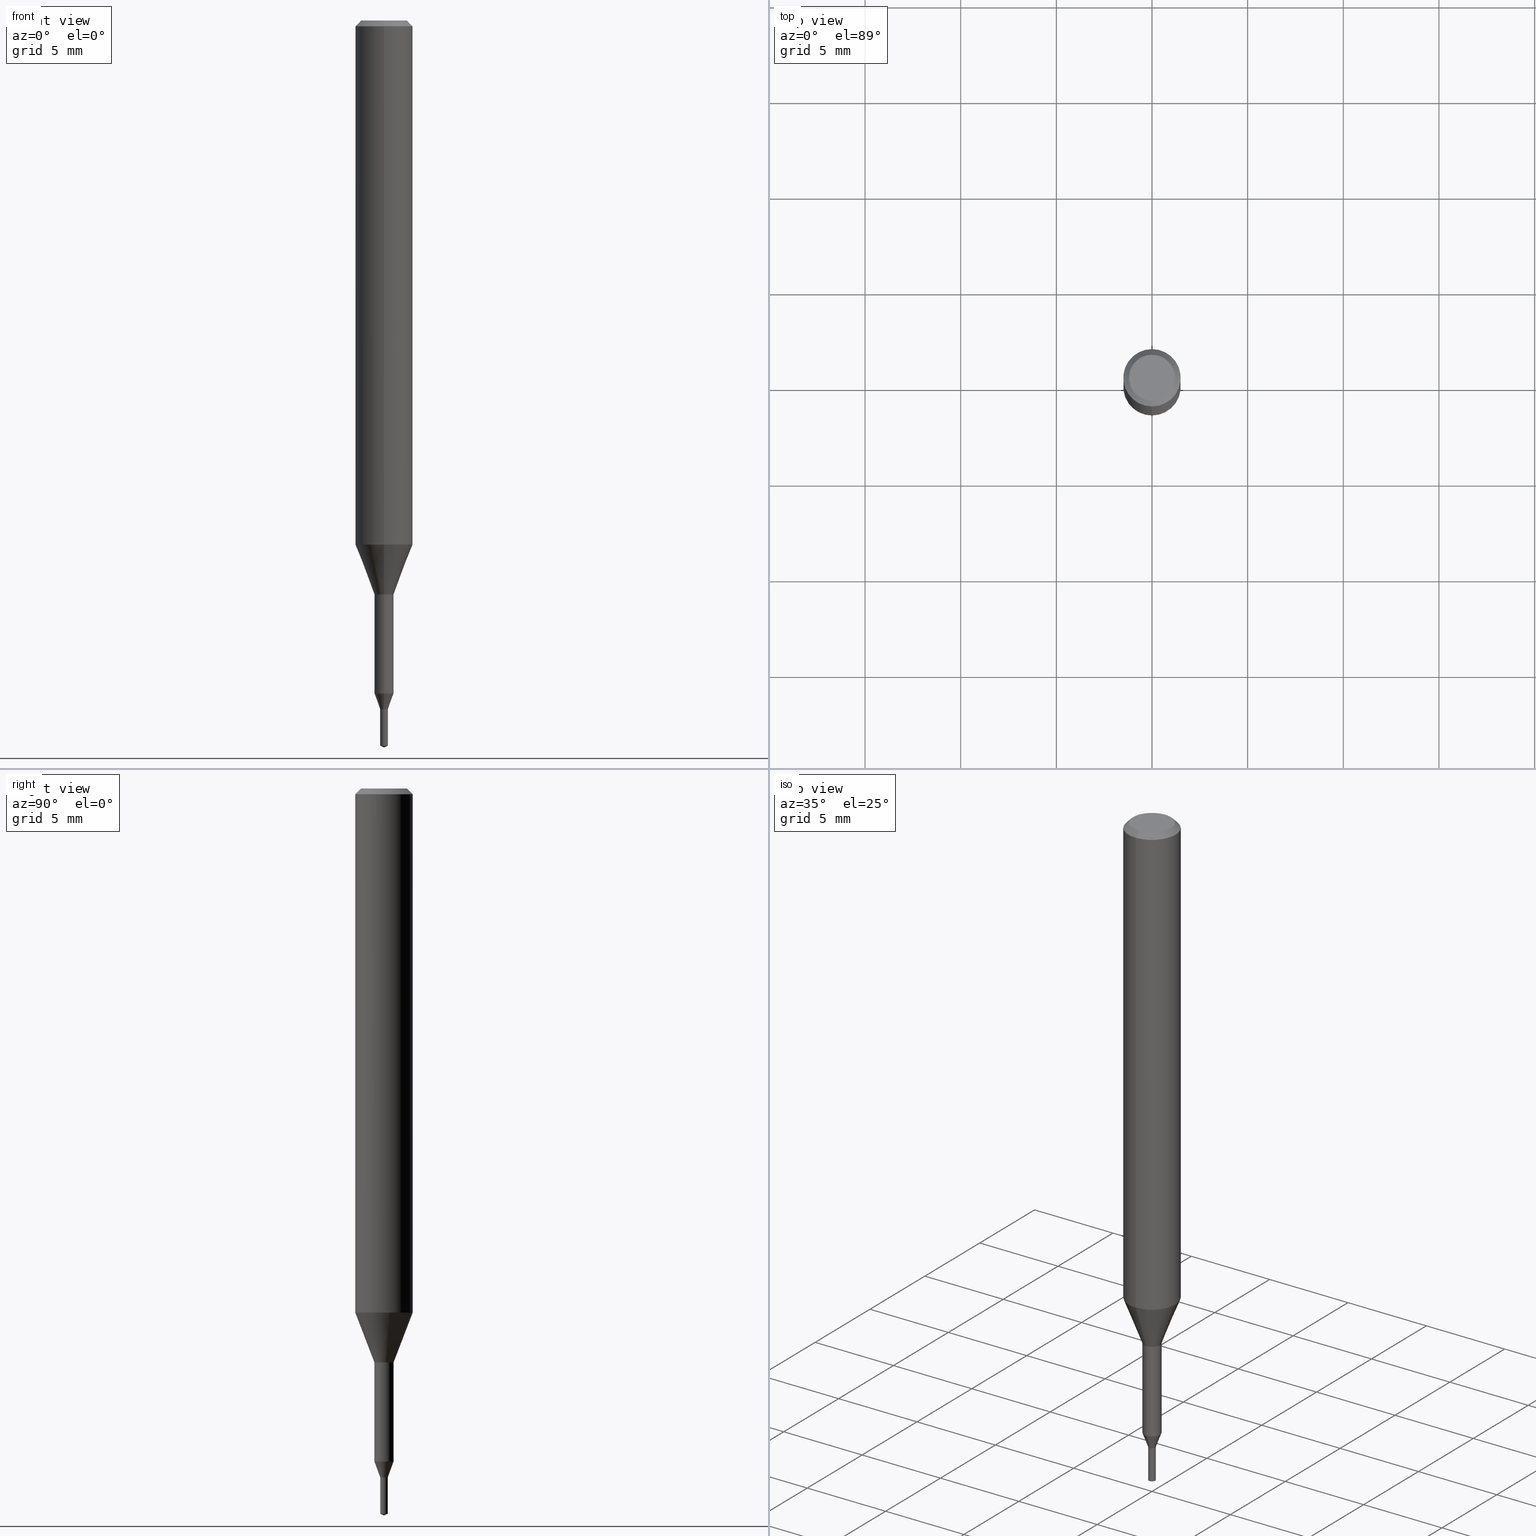
[diagram: canonical four-view strip — front | top / right | iso, engineering-drawing reading convention]
A machine part, canonical four-view strip (front | top / right | iso — engineering-drawing reading convention). The complete STEP part file that produces these views, byte-faithful:
ISO-10303-21;
HEADER;
FILE_DESCRIPTION(('no description'),'unknown implementation level');
FILE_NAME('UTDSX2040-020-Huellk.stp','  ',('CIMSOURCE GmbH'),('CADClick - KiM GmbH - www.kimweb.de'),'unknown preprocess','ACIS','unknown authorization');
FILE_SCHEMA(('automotive_design'));
ENDSEC;
DATA;
#1=MECHANICAL_DESIGN_GEOMETRIC_PRESENTATION_REPRESENTATION(' ',(#14,#15,#16,#17,#18,#19,#20,#21,#22,#23,#24,#25,#26,#27,#28,#29,#30,#31,#32,#33,#34,#35,#36,#37,#38,#39,#40,#41,#42,#43,#44,#45,#46,#47,#48,#49,#50,#51,#52,#53,#54,#55,#56,#57,#58,#59,#60,#61,#62,#63,#64,#65,#66,#67,#68,#69,#70,#71,#72,#73,#74,#75,#76,#77,#78,#79,#80,#81,#82,#83,#84,#85,#86,#87,#88,#89,#90,#91,#92),#10);
#2=PRODUCT_DEFINITION_CONTEXT('',#93,'design');
#3=APPLICATION_PROTOCOL_DEFINITION('INTERNATIONAL STANDARD','automotive_design',1994,#93);
#4=PRODUCT_CATEGORY_RELATIONSHIP('NONE','NONE',#94,#95);
#5=SHAPE_DEFINITION_REPRESENTATION(#96,#97);
#6=PRODUCT_DEFINITION_CONTEXT('',#98,'design');
#7=APPLICATION_PROTOCOL_DEFINITION('INTERNATIONAL STANDARD','automotive_design',1994,#98);
#8=PRODUCT_CATEGORY_RELATIONSHIP('NONE','NONE',#99,#100);
#9=SHAPE_DEFINITION_REPRESENTATION(#101,#102);
#10= (GEOMETRIC_REPRESENTATION_CONTEXT(3)GLOBAL_UNCERTAINTY_ASSIGNED_CONTEXT((#105))GLOBAL_UNIT_ASSIGNED_CONTEXT((#107,#108,#109))REPRESENTATION_CONTEXT('NONE','WORKSPACE'));
#14=STYLED_ITEM('',(#111),#112);
#15=STYLED_ITEM('',(#113),#114);
#16=STYLED_ITEM('',(#115),#116);
#17=STYLED_ITEM('',(#117),#118);
#18=STYLED_ITEM('',(#119),#120);
#19=STYLED_ITEM('',(#121),#122);
#20=STYLED_ITEM('',(#123),#124);
#21=STYLED_ITEM('',(#125),#126);
#22=STYLED_ITEM('',(#127),#128);
#23=STYLED_ITEM('',(#129),#130);
#24=STYLED_ITEM('',(#131),#132);
#25=STYLED_ITEM('',(#133),#134);
#26=STYLED_ITEM('',(#135),#136);
#27=STYLED_ITEM('',(#137),#138);
#28=STYLED_ITEM('',(#139),#140);
#29=STYLED_ITEM('',(#141),#142);
#30=STYLED_ITEM('',(#143),#144);
#31=STYLED_ITEM('',(#145),#146);
#32=STYLED_ITEM('',(#147),#148);
#33=STYLED_ITEM('',(#149),#150);
#34=STYLED_ITEM('',(#151),#152);
#35=STYLED_ITEM('',(#153),#154);
#36=STYLED_ITEM('',(#155),#156);
#37=STYLED_ITEM('',(#157),#158);
#38=STYLED_ITEM('',(#159),#160);
#39=STYLED_ITEM('',(#161),#162);
#40=STYLED_ITEM('',(#163),#164);
#41=STYLED_ITEM('',(#165),#166);
#42=STYLED_ITEM('',(#167),#168);
#43=STYLED_ITEM('',(#169),#170);
#44=STYLED_ITEM('',(#171),#172);
#45=STYLED_ITEM('',(#173),#174);
#46=STYLED_ITEM('',(#175),#176);
#47=STYLED_ITEM('',(#177),#178);
#48=STYLED_ITEM('',(#179),#180);
#49=STYLED_ITEM('',(#181),#182);
#50=STYLED_ITEM('',(#183),#184);
#51=STYLED_ITEM('',(#185),#186);
#52=STYLED_ITEM('',(#187),#188);
#53=STYLED_ITEM('',(#189),#190);
#54=STYLED_ITEM('',(#191),#192);
#55=STYLED_ITEM('',(#193),#194);
#56=STYLED_ITEM('',(#195),#196);
#57=STYLED_ITEM('',(#197),#198);
#58=STYLED_ITEM('',(#199),#200);
#59=STYLED_ITEM('',(#201),#202);
#60=STYLED_ITEM('',(#203),#204);
#61=STYLED_ITEM('',(#205),#206);
#62=STYLED_ITEM('',(#207),#208);
#63=STYLED_ITEM('',(#209),#210);
#64=STYLED_ITEM('',(#211),#212);
#65=STYLED_ITEM('',(#213),#214);
#66=STYLED_ITEM('',(#215),#216);
#67=STYLED_ITEM('',(#217),#218);
#68=STYLED_ITEM('',(#219),#220);
#69=STYLED_ITEM('',(#221),#222);
#70=STYLED_ITEM('',(#223),#224);
#71=STYLED_ITEM('',(#225),#226);
#72=STYLED_ITEM('',(#227),#228);
#73=STYLED_ITEM('',(#229),#230);
#74=STYLED_ITEM('',(#231),#232);
#75=STYLED_ITEM('',(#233),#234);
#76=STYLED_ITEM('',(#235),#236);
#77=STYLED_ITEM('',(#237),#238);
#78=STYLED_ITEM('',(#239),#240);
#79=STYLED_ITEM('',(#241),#242);
#80=STYLED_ITEM('',(#243),#244);
#81=STYLED_ITEM('',(#245),#246);
#82=STYLED_ITEM('',(#247),#248);
#83=STYLED_ITEM('',(#249),#250);
#84=STYLED_ITEM('',(#251),#252);
#85=STYLED_ITEM('',(#253),#254);
#86=STYLED_ITEM('',(#255),#256);
#87=STYLED_ITEM('',(#257),#258);
#88=STYLED_ITEM('',(#259),#260);
#89=STYLED_ITEM('',(#261),#262);
#90=STYLED_ITEM('',(#263),#264);
#91=STYLED_ITEM('',(#265),#266);
#92=STYLED_ITEM('',(#267),#268);
#93=APPLICATION_CONTEXT(' ');
#94=PRODUCT_CATEGORY('part','NONE');
#95=PRODUCT_RELATED_PRODUCT_CATEGORY('detail',' ',(#269));
#96=PRODUCT_DEFINITION_SHAPE('NONE','NONE',#270);
#97=ADVANCED_BREP_SHAPE_REPRESENTATION('1',(#268,#271),#10);
#98=APPLICATION_CONTEXT(' ');
#99=PRODUCT_CATEGORY('part','NONE');
#100=PRODUCT_RELATED_PRODUCT_CATEGORY('detail',' ',(#272));
#101=PRODUCT_DEFINITION_SHAPE('NONE','NONE',#273);
#102=ADVANCED_BREP_SHAPE_REPRESENTATION('2',(#238,#274),#10);
#105=UNCERTAINTY_MEASURE_WITH_UNIT(LENGTH_MEASURE(1.0E-006),#107,'','');
#107= (CONVERSION_BASED_UNIT('MILLIMETRE',#277)LENGTH_UNIT()NAMED_UNIT(#280));
#108= (NAMED_UNIT(#282)PLANE_ANGLE_UNIT()SI_UNIT($,.RADIAN.));
#109= (NAMED_UNIT(#282)SOLID_ANGLE_UNIT()SI_UNIT($,.STERADIAN.));
#111=PRESENTATION_STYLE_ASSIGNMENT((#288));
#112=ADVANCED_FACE('',(#289),#290,.T.);
#113=PRESENTATION_STYLE_ASSIGNMENT((#291));
#114=EDGE_CURVE('',#138,#196,#292,.T.);
#115=PRESENTATION_STYLE_ASSIGNMENT((#293));
#116=VERTEX_POINT('',#294);
#117=PRESENTATION_STYLE_ASSIGNMENT((#295));
#118=ADVANCED_FACE('',(#296),#297,.T.);
#119=PRESENTATION_STYLE_ASSIGNMENT((#298));
#120=VERTEX_POINT('',#299);
#121=PRESENTATION_STYLE_ASSIGNMENT((#300));
#122=VERTEX_POINT('',#301);
#123=PRESENTATION_STYLE_ASSIGNMENT((#302));
#124=ADVANCED_FACE('',(#303),#304,.T.);
#125=PRESENTATION_STYLE_ASSIGNMENT((#305));
#126=ADVANCED_FACE('',(#306),#307,.T.);
#127=PRESENTATION_STYLE_ASSIGNMENT((#308));
#128=EDGE_CURVE('',#176,#116,#309,.T.);
#129=PRESENTATION_STYLE_ASSIGNMENT((#310));
#130=EDGE_CURVE('',#136,#176,#311,.T.);
#131=PRESENTATION_STYLE_ASSIGNMENT((#312));
#132=VERTEX_POINT('',#313);
#133=PRESENTATION_STYLE_ASSIGNMENT((#314));
#134=ADVANCED_FACE('',(#315),#316,.T.);
#135=PRESENTATION_STYLE_ASSIGNMENT((#317));
#136=VERTEX_POINT('',#318);
#137=PRESENTATION_STYLE_ASSIGNMENT((#319));
#138=VERTEX_POINT('',#320);
#139=PRESENTATION_STYLE_ASSIGNMENT((#321));
#140=ADVANCED_FACE('',(#322),#323,.T.);
#141=PRESENTATION_STYLE_ASSIGNMENT((#324));
#142=EDGE_CURVE('',#212,#256,#325,.T.);
#143=PRESENTATION_STYLE_ASSIGNMENT((#326));
#144=VERTEX_POINT('',#327);
#145=PRESENTATION_STYLE_ASSIGNMENT((#328));
#146=EDGE_CURVE('',#168,#182,#329,.T.);
#147=PRESENTATION_STYLE_ASSIGNMENT((#330));
#148=EDGE_CURVE('',#144,#256,#331,.T.);
#149=PRESENTATION_STYLE_ASSIGNMENT((#332));
#150=EDGE_CURVE('',#186,#144,#333,.T.);
#151=PRESENTATION_STYLE_ASSIGNMENT((#334));
#152=ADVANCED_FACE('',(#335),#336,.T.);
#153=PRESENTATION_STYLE_ASSIGNMENT((#337));
#154=VERTEX_POINT('',#338);
#155=PRESENTATION_STYLE_ASSIGNMENT((#339));
#156=EDGE_CURVE('',#182,#168,#340,.T.);
#157=PRESENTATION_STYLE_ASSIGNMENT((#341));
#158=EDGE_CURVE('',#116,#176,#342,.T.);
#159=PRESENTATION_STYLE_ASSIGNMENT((#343));
#160=EDGE_CURVE('',#122,#136,#344,.T.);
#161=PRESENTATION_STYLE_ASSIGNMENT((#345));
#162=EDGE_CURVE('',#170,#132,#346,.T.);
#163=PRESENTATION_STYLE_ASSIGNMENT((#347));
#164=VERTEX_POINT('',#348);
#165=PRESENTATION_STYLE_ASSIGNMENT((#349));
#166=EDGE_CURVE('',#176,#120,#350,.T.);
#167=PRESENTATION_STYLE_ASSIGNMENT((#351));
#168=VERTEX_POINT('',#352);
#169=PRESENTATION_STYLE_ASSIGNMENT((#353));
#170=VERTEX_POINT('',#354);
#171=PRESENTATION_STYLE_ASSIGNMENT((#355));
#172=EDGE_CURVE('',#182,#132,#356,.T.);
#173=PRESENTATION_STYLE_ASSIGNMENT((#357));
#174=ADVANCED_FACE('',(#358),#359,.T.);
#175=PRESENTATION_STYLE_ASSIGNMENT((#360));
#176=VERTEX_POINT('',#361);
#177=PRESENTATION_STYLE_ASSIGNMENT((#362));
#178=EDGE_CURVE('',#196,#138,#363,.T.);
#179=PRESENTATION_STYLE_ASSIGNMENT((#364));
#180=ADVANCED_FACE('',(#365),#366,.T.);
#181=PRESENTATION_STYLE_ASSIGNMENT((#367));
#182=VERTEX_POINT('',#368);
#183=PRESENTATION_STYLE_ASSIGNMENT((#369));
#184=ADVANCED_FACE('',(#370),#371,.T.);
#185=PRESENTATION_STYLE_ASSIGNMENT((#372));
#186=VERTEX_POINT('',#373);
#187=PRESENTATION_STYLE_ASSIGNMENT((#374));
#188=EDGE_CURVE('',#258,#186,#375,.T.);
#189=PRESENTATION_STYLE_ASSIGNMENT((#376));
#190=EDGE_CURVE('',#224,#144,#377,.T.);
#191=PRESENTATION_STYLE_ASSIGNMENT((#378));
#192=ADVANCED_FACE('',(#379),#380,.T.);
#193=PRESENTATION_STYLE_ASSIGNMENT((#381));
#194=EDGE_CURVE('',#170,#168,#382,.T.);
#195=PRESENTATION_STYLE_ASSIGNMENT((#383));
#196=VERTEX_POINT('',#384);
#197=PRESENTATION_STYLE_ASSIGNMENT((#385));
#198=EDGE_CURVE('',#132,#138,#386,.T.);
#199=PRESENTATION_STYLE_ASSIGNMENT((#387));
#200=EDGE_CURVE('',#154,#182,#388,.T.);
#201=PRESENTATION_STYLE_ASSIGNMENT((#389));
#202=EDGE_CURVE('',#168,#154,#390,.T.);
#203=PRESENTATION_STYLE_ASSIGNMENT((#391));
#204=EDGE_CURVE('',#116,#122,#392,.T.);
#205=PRESENTATION_STYLE_ASSIGNMENT((#393));
#206=EDGE_CURVE('',#260,#120,#394,.T.);
#207=PRESENTATION_STYLE_ASSIGNMENT((#395));
#208=ADVANCED_FACE('',(#396),#397,.T.);
#209=PRESENTATION_STYLE_ASSIGNMENT((#398));
#210=ADVANCED_FACE('',(#399),#400,.T.);
#211=PRESENTATION_STYLE_ASSIGNMENT((#401));
#212=VERTEX_POINT('',#402);
#213=PRESENTATION_STYLE_ASSIGNMENT((#403));
#214=EDGE_CURVE('',#164,#136,#404,.T.);
#215=PRESENTATION_STYLE_ASSIGNMENT((#405));
#216=ADVANCED_FACE('',(#406),#407,.T.);
#217=PRESENTATION_STYLE_ASSIGNMENT((#408));
#218=EDGE_CURVE('',#120,#260,#409,.T.);
#219=PRESENTATION_STYLE_ASSIGNMENT((#410));
#220=EDGE_CURVE('',#122,#228,#411,.T.);
#221=PRESENTATION_STYLE_ASSIGNMENT((#412));
#222=EDGE_CURVE('',#164,#228,#413,.T.);
#223=PRESENTATION_STYLE_ASSIGNMENT((#414));
#224=VERTEX_POINT('',#415);
#225=PRESENTATION_STYLE_ASSIGNMENT((#416));
#226=ADVANCED_FACE('',(#417),#418,.T.);
#227=PRESENTATION_STYLE_ASSIGNMENT((#419));
#228=VERTEX_POINT('',#420);
#229=PRESENTATION_STYLE_ASSIGNMENT((#421));
#230=EDGE_CURVE('',#228,#164,#422,.T.);
#231=PRESENTATION_STYLE_ASSIGNMENT((#423));
#232=EDGE_CURVE('',#136,#122,#424,.T.);
#233=PRESENTATION_STYLE_ASSIGNMENT((#425));
#234=ADVANCED_FACE('',(#426),#427,.T.);
#235=PRESENTATION_STYLE_ASSIGNMENT((#428));
#236=ADVANCED_FACE('',(#429,#430),#431,.T.);
#237=PRESENTATION_STYLE_ASSIGNMENT((#432));
#238=MANIFOLD_SOLID_BREP('2',#433);
#239=PRESENTATION_STYLE_ASSIGNMENT((#434));
#240=EDGE_CURVE('',#132,#170,#435,.T.);
#241=PRESENTATION_STYLE_ASSIGNMENT((#436));
#242=EDGE_CURVE('',#212,#224,#437,.T.);
#243=PRESENTATION_STYLE_ASSIGNMENT((#438));
#244=EDGE_CURVE('',#256,#212,#439,.T.);
#245=PRESENTATION_STYLE_ASSIGNMENT((#440));
#246=EDGE_CURVE('',#224,#258,#441,.T.);
#247=PRESENTATION_STYLE_ASSIGNMENT((#442));
#248=ADVANCED_FACE('',(#443),#444,.T.);
#249=PRESENTATION_STYLE_ASSIGNMENT((#445));
#250=ADVANCED_FACE('',(#446),#447,.T.);
#251=PRESENTATION_STYLE_ASSIGNMENT((#448));
#252=ADVANCED_FACE('',(#449),#450,.T.);
#253=PRESENTATION_STYLE_ASSIGNMENT((#451));
#254=EDGE_CURVE('',#186,#258,#452,.T.);
#255=PRESENTATION_STYLE_ASSIGNMENT((#453));
#256=VERTEX_POINT('',#454);
#257=PRESENTATION_STYLE_ASSIGNMENT((#455));
#258=VERTEX_POINT('',#456);
#259=PRESENTATION_STYLE_ASSIGNMENT((#457));
#260=VERTEX_POINT('',#458);
#261=PRESENTATION_STYLE_ASSIGNMENT((#459));
#262=EDGE_CURVE('',#144,#224,#460,.T.);
#263=PRESENTATION_STYLE_ASSIGNMENT((#461));
#264=EDGE_CURVE('',#196,#170,#462,.T.);
#265=PRESENTATION_STYLE_ASSIGNMENT((#463));
#266=EDGE_CURVE('',#260,#116,#464,.T.);
#267=PRESENTATION_STYLE_ASSIGNMENT((#465));
#268=MANIFOLD_SOLID_BREP('1',#466);
#269=PRODUCT('1','1','PART-1-DESC',(#467));
#270=PRODUCT_DEFINITION('NONE','NONE',#468,#2);
#271=AXIS2_PLACEMENT_3D('',#469,#470,#471);
#272=PRODUCT('2','2','PART-2-DESC',(#472));
#273=PRODUCT_DEFINITION('NONE','NONE',#473,#6);
#274=AXIS2_PLACEMENT_3D('',#474,#475,#476);
#277=LENGTH_MEASURE_WITH_UNIT(LENGTH_MEASURE(1.0),#477);
#280=DIMENSIONAL_EXPONENTS(1.0,0.0,0.0,0.0,0.0,0.0,0.0);
#282=DIMENSIONAL_EXPONENTS(0.0,0.0,0.0,0.0,0.0,0.0,0.0);
#288=SURFACE_STYLE_USAGE(.BOTH.,#478);
#289=FACE_OUTER_BOUND('',#479,.T.);
#290=CONICAL_SURFACE('',#480,0.200518203883495,1.4746069699693);
#291=CURVE_STYLE('',#481,POSITIVE_LENGTH_MEASURE(1.0E-006),#482);
#292=CIRCLE('',#483,0.20103640776699);
#293=POINT_STYLE(' ',#484,POSITIVE_LENGTH_MEASURE(1.0E-006),#485);
#294=CARTESIAN_POINT('',(1.83690953073357E-016,-1.5,-27.395));
#295=SURFACE_STYLE_USAGE(.BOTH.,#486);
#296=FACE_OUTER_BOUND('',#487,.T.);
#297=CYLINDRICAL_SURFACE('',#488,0.49995);
#298=POINT_STYLE(' ',#489,POSITIVE_LENGTH_MEASURE(1.0E-006),#490);
#299=CARTESIAN_POINT('',(0.0,0.5,-30.0));
#300=POINT_STYLE(' ',#491,POSITIVE_LENGTH_MEASURE(1.0E-006),#492);
#301=CARTESIAN_POINT('',(1.83690953073357E-016,-1.5,-0.300000000000001));
#302=SURFACE_STYLE_USAGE(.BOTH.,#493);
#303=FACE_OUTER_BOUND('',#494,.T.);
#304=CYLINDRICAL_SURFACE('',#495,0.2);
#305=SURFACE_STYLE_USAGE(.BOTH.,#496);
#306=FACE_OUTER_BOUND('',#497,.T.);
#307=CYLINDRICAL_SURFACE('',#498,0.2);
#308=CURVE_STYLE('',#499,POSITIVE_LENGTH_MEASURE(1.0E-006),#500);
#309=CIRCLE('',#501,1.5);
#310=CURVE_STYLE('',#502,POSITIVE_LENGTH_MEASURE(1.0E-006),#503);
#311=LINE('',#504,#505);
#312=POINT_STYLE(' ',#506,POSITIVE_LENGTH_MEASURE(1.0E-006),#507);
#313=CARTESIAN_POINT('',(0.2,2.44921270764475E-017,-36.0));
#314=SURFACE_STYLE_USAGE(.BOTH.,#508);
#315=FACE_OUTER_BOUND('',#509,.T.);
#316=CONICAL_SURFACE('',#510,0.200518203883495,1.4746069699693);
#317=POINT_STYLE(' ',#511,POSITIVE_LENGTH_MEASURE(1.0E-006),#512);
#318=CARTESIAN_POINT('',(0.0,1.5,-0.300000000000001));
#319=POINT_STYLE(' ',#513,POSITIVE_LENGTH_MEASURE(1.0E-006),#514);
#320=CARTESIAN_POINT('',(0.20103640776699,2.46190462301082E-017,-35.9999));
#321=SURFACE_STYLE_USAGE(.BOTH.,#515);
#322=FACE_OUTER_BOUND('',#516,.T.);
#323=CONICAL_SURFACE('',#517,0.1,1.13446402049478);
#324=CURVE_STYLE('',#518,POSITIVE_LENGTH_MEASURE(1.0E-006),#519);
#325=CIRCLE('',#520,0.200036401699029);
#326=POINT_STYLE(' ',#521,POSITIVE_LENGTH_MEASURE(1.0E-006),#522);
#327=CARTESIAN_POINT('',(0.0,0.49995,-35.176));
#328=CURVE_STYLE('',#523,POSITIVE_LENGTH_MEASURE(1.0E-006),#524);
#329=CIRCLE('',#525,0.2);
#330=CURVE_STYLE('',#526,POSITIVE_LENGTH_MEASURE(1.0E-006),#527);
#331=LINE('',#528,#529);
#332=CURVE_STYLE('',#530,POSITIVE_LENGTH_MEASURE(1.0E-006),#531);
#333=LINE('',#532,#533);
#334=SURFACE_STYLE_USAGE(.BOTH.,#534);
#335=FACE_OUTER_BOUND('',#535,.T.);
#336=PLANE('',#536);
#337=POINT_STYLE(' ',#537,POSITIVE_LENGTH_MEASURE(1.0E-006),#538);
#338=CARTESIAN_POINT('',(0.0,0.0,-38.0));
#339=CURVE_STYLE('',#539,POSITIVE_LENGTH_MEASURE(1.0E-006),#540);
#340=CIRCLE('',#541,0.2);
#341=CURVE_STYLE('',#542,POSITIVE_LENGTH_MEASURE(1.0E-006),#543);
#342=CIRCLE('',#544,1.5);
#343=CURVE_STYLE('',#545,POSITIVE_LENGTH_MEASURE(1.0E-006),#546);
#344=CIRCLE('',#547,1.5);
#345=CURVE_STYLE('',#548,POSITIVE_LENGTH_MEASURE(1.0E-006),#549);
#346=CIRCLE('',#550,0.2);
#347=POINT_STYLE(' ',#551,POSITIVE_LENGTH_MEASURE(1.0E-006),#552);
#348=CARTESIAN_POINT('',(0.0,1.2,0.0));
#349=CURVE_STYLE('',#553,POSITIVE_LENGTH_MEASURE(1.0E-006),#554);
#350=LINE('',#555,#556);
#351=POINT_STYLE(' ',#557,POSITIVE_LENGTH_MEASURE(1.0E-006),#558);
#352=CARTESIAN_POINT('',(-0.2,0.0,-37.90673847));
#353=POINT_STYLE(' ',#559,POSITIVE_LENGTH_MEASURE(1.0E-006),#560);
#354=CARTESIAN_POINT('',(-0.2,0.0,-36.0));
#355=CURVE_STYLE('',#561,POSITIVE_LENGTH_MEASURE(1.0E-006),#562);
#356=LINE('',#563,#564);
#357=SURFACE_STYLE_USAGE(.BOTH.,#565);
#358=FACE_OUTER_BOUND('',#566,.T.);
#359=PLANE('',#567);
#360=POINT_STYLE(' ',#568,POSITIVE_LENGTH_MEASURE(1.0E-006),#569);
#361=CARTESIAN_POINT('',(0.0,1.5,-27.395));
#362=CURVE_STYLE('',#570,POSITIVE_LENGTH_MEASURE(1.0E-006),#571);
#363=CIRCLE('',#572,0.20103640776699);
#364=SURFACE_STYLE_USAGE(.BOTH.,#573);
#365=FACE_OUTER_BOUND('',#574,.T.);
#366=CONICAL_SURFACE('',#575,1.35,0.785398163397447);
#367=POINT_STYLE(' ',#576,POSITIVE_LENGTH_MEASURE(1.0E-006),#577);
#368=CARTESIAN_POINT('',(0.2,2.44921270764475E-017,-37.90673847));
#369=SURFACE_STYLE_USAGE(.BOTH.,#578);
#370=FACE_OUTER_BOUND('',#579,.T.);
#371=PLANE('',#580);
#372=POINT_STYLE(' ',#581,POSITIVE_LENGTH_MEASURE(1.0E-006),#582);
#373=CARTESIAN_POINT('',(0.0,0.49995,-30.0));
#374=CURVE_STYLE('',#583,POSITIVE_LENGTH_MEASURE(1.0E-006),#584);
#375=CIRCLE('',#585,0.49995);
#376=CURVE_STYLE('',#586,POSITIVE_LENGTH_MEASURE(1.0E-006),#587);
#377=CIRCLE('',#588,0.49995);
#378=SURFACE_STYLE_USAGE(.BOTH.,#589);
#379=FACE_OUTER_BOUND('',#590,.T.);
#380=CONICAL_SURFACE('',#591,0.349993200849515,0.349107136387553);
#381=CURVE_STYLE('',#592,POSITIVE_LENGTH_MEASURE(1.0E-006),#593);
#382=LINE('',#594,#595);
#383=POINT_STYLE(' ',#596,POSITIVE_LENGTH_MEASURE(1.0E-006),#597);
#384=CARTESIAN_POINT('',(-0.20103640776699,0.0,-35.9999));
#385=CURVE_STYLE('',#598,POSITIVE_LENGTH_MEASURE(1.0E-006),#599);
#386=LINE('',#600,#601);
#387=CURVE_STYLE('',#602,POSITIVE_LENGTH_MEASURE(1.0E-006),#603);
#388=LINE('',#604,#605);
#389=CURVE_STYLE('',#606,POSITIVE_LENGTH_MEASURE(1.0E-006),#607);
#390=LINE('',#608,#609);
#391=CURVE_STYLE('',#610,POSITIVE_LENGTH_MEASURE(1.0E-006),#611);
#392=LINE('',#612,#613);
#393=CURVE_STYLE('',#614,POSITIVE_LENGTH_MEASURE(1.0E-006),#615);
#394=CIRCLE('',#616,0.5);
#395=SURFACE_STYLE_USAGE(.BOTH.,#617);
#396=FACE_OUTER_BOUND('',#618,.T.);
#397=CONICAL_SURFACE('',#619,1.0,0.366530581623394);
#398=SURFACE_STYLE_USAGE(.BOTH.,#620);
#399=FACE_OUTER_BOUND('',#621,.T.);
#400=CONICAL_SURFACE('',#622,0.1,1.13446402049478);
#401=POINT_STYLE(' ',#623,POSITIVE_LENGTH_MEASURE(1.0E-006),#624);
#402=CARTESIAN_POINT('',(2.44965848516396E-017,-0.200036401699029,-35.9999));
#403=CURVE_STYLE('',#625,POSITIVE_LENGTH_MEASURE(1.0E-006),#626);
#404=LINE('',#627,#628);
#405=SURFACE_STYLE_USAGE(.BOTH.,#629);
#406=FACE_OUTER_BOUND('',#630,.T.);
#407=CYLINDRICAL_SURFACE('',#631,1.5);
#408=CURVE_STYLE('',#632,POSITIVE_LENGTH_MEASURE(1.0E-006),#633);
#409=CIRCLE('',#634,0.5);
#410=CURVE_STYLE('',#635,POSITIVE_LENGTH_MEASURE(1.0E-006),#636);
#411=LINE('',#637,#638);
#412=CURVE_STYLE('',#639,POSITIVE_LENGTH_MEASURE(1.0E-006),#640);
#413=CIRCLE('',#641,1.2);
#414=POINT_STYLE(' ',#642,POSITIVE_LENGTH_MEASURE(1.0E-006),#643);
#415=CARTESIAN_POINT('',(6.12241946593498E-017,-0.49995,-35.176));
#416=SURFACE_STYLE_USAGE(.BOTH.,#644);
#417=FACE_OUTER_BOUND('',#645,.T.);
#418=CONICAL_SURFACE('',#646,0.349993200849515,0.349107136387553);
#419=POINT_STYLE(' ',#647,POSITIVE_LENGTH_MEASURE(1.0E-006),#648);
#420=CARTESIAN_POINT('',(1.46952762458685E-016,-1.2,0.0));
#421=CURVE_STYLE('',#649,POSITIVE_LENGTH_MEASURE(1.0E-006),#650);
#422=CIRCLE('',#651,1.2);
#423=CURVE_STYLE('',#652,POSITIVE_LENGTH_MEASURE(1.0E-006),#653);
#424=CIRCLE('',#654,1.5);
#425=SURFACE_STYLE_USAGE(.BOTH.,#655);
#426=FACE_OUTER_BOUND('',#656,.T.);
#427=CYLINDRICAL_SURFACE('',#657,1.5);
#428=SURFACE_STYLE_USAGE(.BOTH.,#658);
#429=FACE_BOUND('',#659,.T.);
#430=FACE_OUTER_BOUND('',#660,.T.);
#431=PLANE('',#661);
#432=SURFACE_STYLE_USAGE(.BOTH.,#662);
#433=CLOSED_SHELL('',(#210,#124,#112,#152,#134,#126,#140));
#434=CURVE_STYLE('',#663,POSITIVE_LENGTH_MEASURE(1.0E-006),#664);
#435=CIRCLE('',#665,0.2);
#436=CURVE_STYLE('',#666,POSITIVE_LENGTH_MEASURE(1.0E-006),#667);
#437=LINE('',#668,#669);
#438=CURVE_STYLE('',#670,POSITIVE_LENGTH_MEASURE(1.0E-006),#671);
#439=CIRCLE('',#672,0.200036401699029);
#440=CURVE_STYLE('',#673,POSITIVE_LENGTH_MEASURE(1.0E-006),#674);
#441=LINE('',#675,#676);
#442=SURFACE_STYLE_USAGE(.BOTH.,#677);
#443=FACE_OUTER_BOUND('',#678,.T.);
#444=CONICAL_SURFACE('',#679,1.0,0.366530581623394);
#445=SURFACE_STYLE_USAGE(.BOTH.,#680);
#446=FACE_OUTER_BOUND('',#681,.T.);
#447=CONICAL_SURFACE('',#682,1.35,0.785398163397447);
#448=SURFACE_STYLE_USAGE(.BOTH.,#683);
#449=FACE_OUTER_BOUND('',#684,.T.);
#450=CYLINDRICAL_SURFACE('',#685,0.49995);
#451=CURVE_STYLE('',#686,POSITIVE_LENGTH_MEASURE(1.0E-006),#687);
#452=CIRCLE('',#688,0.49995);
#453=POINT_STYLE(' ',#689,POSITIVE_LENGTH_MEASURE(1.0E-006),#690);
#454=CARTESIAN_POINT('',(0.0,0.200036401699029,-35.9999));
#455=POINT_STYLE(' ',#691,POSITIVE_LENGTH_MEASURE(1.0E-006),#692);
#456=CARTESIAN_POINT('',(6.12241946593498E-017,-0.49995,-30.0));
#457=POINT_STYLE(' ',#693,POSITIVE_LENGTH_MEASURE(1.0E-006),#694);
#458=CARTESIAN_POINT('',(6.12303176911189E-017,-0.5,-30.0));
#459=CURVE_STYLE('',#695,POSITIVE_LENGTH_MEASURE(1.0E-006),#696);
#460=CIRCLE('',#697,0.49995);
#461=CURVE_STYLE('',#698,POSITIVE_LENGTH_MEASURE(1.0E-006),#699);
#462=LINE('',#700,#701);
#463=CURVE_STYLE('',#702,POSITIVE_LENGTH_MEASURE(1.0E-006),#703);
#464=LINE('',#704,#705);
#465=SURFACE_STYLE_USAGE(.BOTH.,#706);
#466=CLOSED_SHELL('',(#226,#118,#248,#234,#250,#184,#180,#216,#208,#236,#252,#192,#174));
#467=PRODUCT_CONTEXT('',#93,'mechanical');
#468=PRODUCT_DEFINITION_FORMATION_WITH_SPECIFIED_SOURCE(' ','NONE',#269,.NOT_KNOWN.);
#469=CARTESIAN_POINT('',(0.0,0.0,0.0));
#470=DIRECTION('',(0.0,0.0,1.0));
#471=DIRECTION('',(1.0,0.0,0.0));
#472=PRODUCT_CONTEXT('',#98,'mechanical');
#473=PRODUCT_DEFINITION_FORMATION_WITH_SPECIFIED_SOURCE(' ','NONE',#272,.NOT_KNOWN.);
#474=CARTESIAN_POINT('',(0.0,0.0,0.0));
#475=DIRECTION('',(0.0,0.0,1.0));
#476=DIRECTION('',(1.0,0.0,0.0));
#477= (NAMED_UNIT(#280)LENGTH_UNIT()SI_UNIT(.MILLI.,.METRE.));
#478=SURFACE_SIDE_STYLE('',(#708));
#479=EDGE_LOOP('',(#709,#710,#711,#712));
#480=AXIS2_PLACEMENT_3D('',#713,#714,#715);
#481=DRAUGHTING_PRE_DEFINED_CURVE_FONT('continuous');
#482=COLOUR_RGB('',0.800000011920929,0.800000011920929,0.800000011920929);
#483=AXIS2_PLACEMENT_3D('',#716,#717,#718);
#484=PRE_DEFINED_MARKER('');
#485=COLOUR_RGB('',0.498039215803146,0.498039215803146,0.498039215803146);
#486=SURFACE_SIDE_STYLE('',(#719));
#487=EDGE_LOOP('',(#720,#721,#722,#723));
#488=AXIS2_PLACEMENT_3D('',#724,#725,#726);
#489=PRE_DEFINED_MARKER('');
#490=COLOUR_RGB('',0.498039215803146,0.498039215803146,0.498039215803146);
#491=PRE_DEFINED_MARKER('');
#492=COLOUR_RGB('',0.498039215803146,0.498039215803146,0.498039215803146);
#493=SURFACE_SIDE_STYLE('',(#727));
#494=EDGE_LOOP('',(#728,#729,#730,#731));
#495=AXIS2_PLACEMENT_3D('',#732,#733,#734);
#496=SURFACE_SIDE_STYLE('',(#735));
#497=EDGE_LOOP('',(#736,#737,#738,#739));
#498=AXIS2_PLACEMENT_3D('',#740,#741,#742);
#499=DRAUGHTING_PRE_DEFINED_CURVE_FONT('continuous');
#500=COLOUR_RGB('',0.498039215803146,0.498039215803146,0.498039215803146);
#501=AXIS2_PLACEMENT_3D('',#743,#744,#745);
#502=DRAUGHTING_PRE_DEFINED_CURVE_FONT('continuous');
#503=COLOUR_RGB('',0.498039215803146,0.498039215803146,0.498039215803146);
#504=CARTESIAN_POINT('',(-1.83690953073357E-016,1.5,-13.8475));
#505=VECTOR('',#746,1.0);
#506=PRE_DEFINED_MARKER('');
#507=COLOUR_RGB('',0.800000011920929,0.800000011920929,0.800000011920929);
#508=SURFACE_SIDE_STYLE('',(#747));
#509=EDGE_LOOP('',(#748,#749,#750,#751));
#510=AXIS2_PLACEMENT_3D('',#752,#753,#754);
#511=PRE_DEFINED_MARKER('');
#512=COLOUR_RGB('',0.498039215803146,0.498039215803146,0.498039215803146);
#513=PRE_DEFINED_MARKER('');
#514=COLOUR_RGB('',0.800000011920929,0.800000011920929,0.800000011920929);
#515=SURFACE_SIDE_STYLE('',(#755));
#516=EDGE_LOOP('',(#756,#757,#758));
#517=AXIS2_PLACEMENT_3D('',#759,#760,#761);
#518=DRAUGHTING_PRE_DEFINED_CURVE_FONT('continuous');
#519=COLOUR_RGB('',0.498039215803146,0.498039215803146,0.498039215803146);
#520=AXIS2_PLACEMENT_3D('',#762,#763,#764);
#521=PRE_DEFINED_MARKER('');
#522=COLOUR_RGB('',0.498039215803146,0.498039215803146,0.498039215803146);
#523=DRAUGHTING_PRE_DEFINED_CURVE_FONT('continuous');
#524=COLOUR_RGB('',0.800000011920929,0.800000011920929,0.800000011920929);
#525=AXIS2_PLACEMENT_3D('',#765,#766,#767);
#526=DRAUGHTING_PRE_DEFINED_CURVE_FONT('continuous');
#527=COLOUR_RGB('',0.498039215803146,0.498039215803146,0.498039215803146);
#528=CARTESIAN_POINT('',(-4.28603897554947E-017,0.349993200849515,-35.58795));
#529=VECTOR('',#768,1.0);
#530=DRAUGHTING_PRE_DEFINED_CURVE_FONT('continuous');
#531=COLOUR_RGB('',0.498039215803146,0.498039215803146,0.498039215803146);
#532=CARTESIAN_POINT('',(-6.12241946593498E-017,0.49995,-32.588));
#533=VECTOR('',#769,1.0);
#534=SURFACE_SIDE_STYLE('',(#770));
#535=EDGE_LOOP('',(#771,#772));
#536=AXIS2_PLACEMENT_3D('',#773,#774,#775);
#537=PRE_DEFINED_MARKER('');
#538=COLOUR_RGB('',0.800000011920929,0.800000011920929,0.800000011920929);
#539=DRAUGHTING_PRE_DEFINED_CURVE_FONT('continuous');
#540=COLOUR_RGB('',0.800000011920929,0.800000011920929,0.800000011920929);
#541=AXIS2_PLACEMENT_3D('',#776,#777,#778);
#542=DRAUGHTING_PRE_DEFINED_CURVE_FONT('continuous');
#543=COLOUR_RGB('',0.498039215803146,0.498039215803146,0.498039215803146);
#544=AXIS2_PLACEMENT_3D('',#779,#780,#781);
#545=DRAUGHTING_PRE_DEFINED_CURVE_FONT('continuous');
#546=COLOUR_RGB('',0.498039215803146,0.498039215803146,0.498039215803146);
#547=AXIS2_PLACEMENT_3D('',#782,#783,#784);
#548=DRAUGHTING_PRE_DEFINED_CURVE_FONT('continuous');
#549=COLOUR_RGB('',0.800000011920929,0.800000011920929,0.800000011920929);
#550=AXIS2_PLACEMENT_3D('',#785,#786,#787);
#551=PRE_DEFINED_MARKER('');
#552=COLOUR_RGB('',0.498039215803146,0.498039215803146,0.498039215803146);
#553=DRAUGHTING_PRE_DEFINED_CURVE_FONT('continuous');
#554=COLOUR_RGB('',0.498039215803146,0.498039215803146,0.498039215803146);
#555=CARTESIAN_POINT('',(-1.22460635382238E-016,1.0,-28.6975));
#556=VECTOR('',#788,1.0);
#557=PRE_DEFINED_MARKER('');
#558=COLOUR_RGB('',0.800000011920929,0.800000011920929,0.800000011920929);
#559=PRE_DEFINED_MARKER('');
#560=COLOUR_RGB('',0.800000011920929,0.800000011920929,0.800000011920929);
#561=DRAUGHTING_PRE_DEFINED_CURVE_FONT('continuous');
#562=COLOUR_RGB('',0.800000011920929,0.800000011920929,0.800000011920929);
#563=CARTESIAN_POINT('',(0.2,2.44921270764475E-017,-36.953369235));
#564=VECTOR('',#789,1.0);
#565=SURFACE_SIDE_STYLE('',(#790));
#566=EDGE_LOOP('',(#791,#792));
#567=AXIS2_PLACEMENT_3D('',#793,#794,#795);
#568=PRE_DEFINED_MARKER('');
#569=COLOUR_RGB('',0.498039215803146,0.498039215803146,0.498039215803146);
#570=DRAUGHTING_PRE_DEFINED_CURVE_FONT('continuous');
#571=COLOUR_RGB('',0.800000011920929,0.800000011920929,0.800000011920929);
#572=AXIS2_PLACEMENT_3D('',#796,#797,#798);
#573=SURFACE_SIDE_STYLE('',(#799));
#574=EDGE_LOOP('',(#800,#801,#802,#803));
#575=AXIS2_PLACEMENT_3D('',#804,#805,#806);
#576=PRE_DEFINED_MARKER('');
#577=COLOUR_RGB('',0.800000011920929,0.800000011920929,0.800000011920929);
#578=SURFACE_SIDE_STYLE('',(#807));
#579=EDGE_LOOP('',(#808,#809));
#580=AXIS2_PLACEMENT_3D('',#810,#811,#812);
#581=PRE_DEFINED_MARKER('');
#582=COLOUR_RGB('',0.498039215803146,0.498039215803146,0.498039215803146);
#583=DRAUGHTING_PRE_DEFINED_CURVE_FONT('continuous');
#584=COLOUR_RGB('',0.498039215803146,0.498039215803146,0.498039215803146);
#585=AXIS2_PLACEMENT_3D('',#813,#814,#815);
#586=DRAUGHTING_PRE_DEFINED_CURVE_FONT('continuous');
#587=COLOUR_RGB('',0.498039215803146,0.498039215803146,0.498039215803146);
#588=AXIS2_PLACEMENT_3D('',#816,#817,#818);
#589=SURFACE_SIDE_STYLE('',(#819));
#590=EDGE_LOOP('',(#820,#821,#822,#823));
#591=AXIS2_PLACEMENT_3D('',#824,#825,#826);
#592=DRAUGHTING_PRE_DEFINED_CURVE_FONT('continuous');
#593=COLOUR_RGB('',0.800000011920929,0.800000011920929,0.800000011920929);
#594=CARTESIAN_POINT('',(-0.2,-2.44921270764475E-017,-36.953369235));
#595=VECTOR('',#827,1.0);
#596=PRE_DEFINED_MARKER('');
#597=COLOUR_RGB('',0.800000011920929,0.800000011920929,0.800000011920929);
#598=DRAUGHTING_PRE_DEFINED_CURVE_FONT('continuous');
#599=COLOUR_RGB('',0.800000011920929,0.800000011920929,0.800000011920929);
#600=CARTESIAN_POINT('',(0.200518203883495,2.45555866532779E-017,-35.99995));
#601=VECTOR('',#828,1.0);
#602=DRAUGHTING_PRE_DEFINED_CURVE_FONT('continuous');
#603=COLOUR_RGB('',0.800000011920929,0.800000011920929,0.800000011920929);
#604=CARTESIAN_POINT('',(0.1,1.22460635382238E-017,-37.953369235));
#605=VECTOR('',#829,1.0);
#606=DRAUGHTING_PRE_DEFINED_CURVE_FONT('continuous');
#607=COLOUR_RGB('',0.800000011920929,0.800000011920929,0.800000011920929);
#608=CARTESIAN_POINT('',(-0.1,-1.22460635382238E-017,-37.953369235));
#609=VECTOR('',#830,1.0);
#610=DRAUGHTING_PRE_DEFINED_CURVE_FONT('continuous');
#611=COLOUR_RGB('',0.498039215803146,0.498039215803146,0.498039215803146);
#612=CARTESIAN_POINT('',(1.83690953073357E-016,-1.5,-13.8475));
#613=VECTOR('',#831,1.0);
#614=DRAUGHTING_PRE_DEFINED_CURVE_FONT('continuous');
#615=COLOUR_RGB('',0.498039215803146,0.498039215803146,0.498039215803146);
#616=AXIS2_PLACEMENT_3D('',#832,#833,#834);
#617=SURFACE_SIDE_STYLE('',(#835));
#618=EDGE_LOOP('',(#836,#837,#838,#839));
#619=AXIS2_PLACEMENT_3D('',#840,#841,#842);
#620=SURFACE_SIDE_STYLE('',(#843));
#621=EDGE_LOOP('',(#844,#845,#846));
#622=AXIS2_PLACEMENT_3D('',#847,#848,#849);
#623=PRE_DEFINED_MARKER('');
#624=COLOUR_RGB('',0.498039215803146,0.498039215803146,0.498039215803146);
#625=DRAUGHTING_PRE_DEFINED_CURVE_FONT('continuous');
#626=COLOUR_RGB('',0.498039215803146,0.498039215803146,0.498039215803146);
#627=CARTESIAN_POINT('',(-1.65321857766021E-016,1.35,-0.150000000000002));
#628=VECTOR('',#850,1.0);
#629=SURFACE_SIDE_STYLE('',(#851));
#630=EDGE_LOOP('',(#852,#853,#854,#855));
#631=AXIS2_PLACEMENT_3D('',#856,#857,#858);
#632=DRAUGHTING_PRE_DEFINED_CURVE_FONT('continuous');
#633=COLOUR_RGB('',0.498039215803146,0.498039215803146,0.498039215803146);
#634=AXIS2_PLACEMENT_3D('',#859,#860,#861);
#635=DRAUGHTING_PRE_DEFINED_CURVE_FONT('continuous');
#636=COLOUR_RGB('',0.498039215803146,0.498039215803146,0.498039215803146);
#637=CARTESIAN_POINT('',(1.65321857766021E-016,-1.35,-0.150000000000002));
#638=VECTOR('',#862,1.0);
#639=DRAUGHTING_PRE_DEFINED_CURVE_FONT('continuous');
#640=COLOUR_RGB('',0.498039215803146,0.498039215803146,0.498039215803146);
#641=AXIS2_PLACEMENT_3D('',#863,#864,#865);
#642=PRE_DEFINED_MARKER('');
#643=COLOUR_RGB('',0.498039215803146,0.498039215803146,0.498039215803146);
#644=SURFACE_SIDE_STYLE('',(#866));
#645=EDGE_LOOP('',(#867,#868,#869,#870));
#646=AXIS2_PLACEMENT_3D('',#871,#872,#873);
#647=PRE_DEFINED_MARKER('');
#648=COLOUR_RGB('',0.498039215803146,0.498039215803146,0.498039215803146);
#649=DRAUGHTING_PRE_DEFINED_CURVE_FONT('continuous');
#650=COLOUR_RGB('',0.498039215803146,0.498039215803146,0.498039215803146);
#651=AXIS2_PLACEMENT_3D('',#874,#875,#876);
#652=DRAUGHTING_PRE_DEFINED_CURVE_FONT('continuous');
#653=COLOUR_RGB('',0.498039215803146,0.498039215803146,0.498039215803146);
#654=AXIS2_PLACEMENT_3D('',#877,#878,#879);
#655=SURFACE_SIDE_STYLE('',(#880));
#656=EDGE_LOOP('',(#881,#882,#883,#884));
#657=AXIS2_PLACEMENT_3D('',#885,#886,#887);
#658=SURFACE_SIDE_STYLE('',(#888));
#659=EDGE_LOOP('',(#889,#890));
#660=EDGE_LOOP('',(#891,#892));
#661=AXIS2_PLACEMENT_3D('',#893,#894,#895);
#662=SURFACE_SIDE_STYLE('',(#896));
#663=DRAUGHTING_PRE_DEFINED_CURVE_FONT('continuous');
#664=COLOUR_RGB('',0.800000011920929,0.800000011920929,0.800000011920929);
#665=AXIS2_PLACEMENT_3D('',#897,#898,#899);
#666=DRAUGHTING_PRE_DEFINED_CURVE_FONT('continuous');
#667=COLOUR_RGB('',0.498039215803146,0.498039215803146,0.498039215803146);
#668=CARTESIAN_POINT('',(4.28603897554947E-017,-0.349993200849515,-35.58795));
#669=VECTOR('',#900,1.0);
#670=DRAUGHTING_PRE_DEFINED_CURVE_FONT('continuous');
#671=COLOUR_RGB('',0.498039215803146,0.498039215803146,0.498039215803146);
#672=AXIS2_PLACEMENT_3D('',#901,#902,#903);
#673=DRAUGHTING_PRE_DEFINED_CURVE_FONT('continuous');
#674=COLOUR_RGB('',0.498039215803146,0.498039215803146,0.498039215803146);
#675=CARTESIAN_POINT('',(6.12241946593498E-017,-0.49995,-32.588));
#676=VECTOR('',#904,1.0);
#677=SURFACE_SIDE_STYLE('',(#905));
#678=EDGE_LOOP('',(#906,#907,#908,#909));
#679=AXIS2_PLACEMENT_3D('',#910,#911,#912);
#680=SURFACE_SIDE_STYLE('',(#913));
#681=EDGE_LOOP('',(#914,#915,#916,#917));
#682=AXIS2_PLACEMENT_3D('',#918,#919,#920);
#683=SURFACE_SIDE_STYLE('',(#921));
#684=EDGE_LOOP('',(#922,#923,#924,#925));
#685=AXIS2_PLACEMENT_3D('',#926,#927,#928);
#686=DRAUGHTING_PRE_DEFINED_CURVE_FONT('continuous');
#687=COLOUR_RGB('',0.498039215803146,0.498039215803146,0.498039215803146);
#688=AXIS2_PLACEMENT_3D('',#929,#930,#931);
#689=PRE_DEFINED_MARKER('');
#690=COLOUR_RGB('',0.498039215803146,0.498039215803146,0.498039215803146);
#691=PRE_DEFINED_MARKER('');
#692=COLOUR_RGB('',0.498039215803146,0.498039215803146,0.498039215803146);
#693=PRE_DEFINED_MARKER('');
#694=COLOUR_RGB('',0.498039215803146,0.498039215803146,0.498039215803146);
#695=DRAUGHTING_PRE_DEFINED_CURVE_FONT('continuous');
#696=COLOUR_RGB('',0.498039215803146,0.498039215803146,0.498039215803146);
#697=AXIS2_PLACEMENT_3D('',#932,#933,#934);
#698=DRAUGHTING_PRE_DEFINED_CURVE_FONT('continuous');
#699=COLOUR_RGB('',0.800000011920929,0.800000011920929,0.800000011920929);
#700=CARTESIAN_POINT('',(-0.200518203883495,-2.45555866532779E-017,-35.99995));
#701=VECTOR('',#935,1.0);
#702=DRAUGHTING_PRE_DEFINED_CURVE_FONT('continuous');
#703=COLOUR_RGB('',0.498039215803146,0.498039215803146,0.498039215803146);
#704=CARTESIAN_POINT('',(1.22460635382238E-016,-1.0,-28.6975));
#705=VECTOR('',#936,1.0);
#706=SURFACE_SIDE_STYLE('',(#937));
#708=SURFACE_STYLE_FILL_AREA(#938);
#709=ORIENTED_EDGE('',*,*,#264,.F.);
#710=ORIENTED_EDGE('',*,*,#178,.T.);
#711=ORIENTED_EDGE('',*,*,#198,.F.);
#712=ORIENTED_EDGE('',*,*,#162,.F.);
#713=CARTESIAN_POINT('',(0.0,0.0,-35.99995));
#714=DIRECTION('',(-0.0,-0.0,1.0));
#715=DIRECTION('',(-1.0,0.0,0.0));
#716=CARTESIAN_POINT('',(0.0,0.0,-35.9999));
#717=DIRECTION('',(0.0,0.0,-1.0));
#718=DIRECTION('',(-1.0,0.0,0.0));
#719=SURFACE_STYLE_FILL_AREA(#939);
#720=ORIENTED_EDGE('',*,*,#150,.F.);
#721=ORIENTED_EDGE('',*,*,#254,.T.);
#722=ORIENTED_EDGE('',*,*,#246,.F.);
#723=ORIENTED_EDGE('',*,*,#262,.F.);
#724=CARTESIAN_POINT('',(0.0,0.0,-32.588));
#725=DIRECTION('',(-0.0,-0.0,1.0));
#726=DIRECTION('',(0.0,1.0,0.0));
#727=SURFACE_STYLE_FILL_AREA(#940);
#728=ORIENTED_EDGE('',*,*,#194,.F.);
#729=ORIENTED_EDGE('',*,*,#162,.T.);
#730=ORIENTED_EDGE('',*,*,#172,.F.);
#731=ORIENTED_EDGE('',*,*,#146,.F.);
#732=CARTESIAN_POINT('',(0.0,0.0,-36.953369235));
#733=DIRECTION('',(-0.0,-0.0,1.0));
#734=DIRECTION('',(-1.0,0.0,0.0));
#735=SURFACE_STYLE_FILL_AREA(#941);
#736=ORIENTED_EDGE('',*,*,#194,.T.);
#737=ORIENTED_EDGE('',*,*,#156,.F.);
#738=ORIENTED_EDGE('',*,*,#172,.T.);
#739=ORIENTED_EDGE('',*,*,#240,.T.);
#740=CARTESIAN_POINT('',(0.0,0.0,-36.953369235));
#741=DIRECTION('',(-0.0,-0.0,1.0));
#742=DIRECTION('',(-1.0,0.0,0.0));
#743=CARTESIAN_POINT('',(0.0,0.0,-27.395));
#744=DIRECTION('',(0.0,0.0,-1.0));
#745=DIRECTION('',(0.0,1.0,0.0));
#746=DIRECTION('',(0.0,0.0,-1.0));
#747=SURFACE_STYLE_FILL_AREA(#942);
#748=ORIENTED_EDGE('',*,*,#264,.T.);
#749=ORIENTED_EDGE('',*,*,#240,.F.);
#750=ORIENTED_EDGE('',*,*,#198,.T.);
#751=ORIENTED_EDGE('',*,*,#114,.T.);
#752=CARTESIAN_POINT('',(0.0,0.0,-35.99995));
#753=DIRECTION('',(-0.0,-0.0,1.0));
#754=DIRECTION('',(-1.0,0.0,0.0));
#755=SURFACE_STYLE_FILL_AREA(#943);
#756=ORIENTED_EDGE('',*,*,#200,.T.);
#757=ORIENTED_EDGE('',*,*,#156,.T.);
#758=ORIENTED_EDGE('',*,*,#202,.T.);
#759=CARTESIAN_POINT('',(0.0,0.0,-37.953369235));
#760=DIRECTION('',(-0.0,-0.0,1.0));
#761=DIRECTION('',(-1.0,0.0,0.0));
#762=CARTESIAN_POINT('',(0.0,0.0,-35.9999));
#763=DIRECTION('',(0.0,0.0,-1.0));
#764=DIRECTION('',(0.0,1.0,0.0));
#765=CARTESIAN_POINT('',(0.0,0.0,-37.90673847));
#766=DIRECTION('',(0.0,0.0,-1.0));
#767=DIRECTION('',(-1.0,0.0,0.0));
#768=DIRECTION('',(4.18887550293092E-017,-0.342058939173077,-0.939678499345276));
#769=DIRECTION('',(0.0,0.0,-1.0));
#770=SURFACE_STYLE_FILL_AREA(#944);
#771=ORIENTED_EDGE('',*,*,#178,.F.);
#772=ORIENTED_EDGE('',*,*,#114,.F.);
#773=CARTESIAN_POINT('',(-0.100518203883495,0.0,-35.9999));
#774=DIRECTION('',(0.0,0.0,1.0));
#775=DIRECTION('',(1.0,0.0,0.0));
#776=CARTESIAN_POINT('',(0.0,0.0,-37.90673847));
#777=DIRECTION('',(0.0,0.0,-1.0));
#778=DIRECTION('',(-1.0,0.0,0.0));
#779=CARTESIAN_POINT('',(0.0,0.0,-27.395));
#780=DIRECTION('',(0.0,0.0,-1.0));
#781=DIRECTION('',(0.0,1.0,0.0));
#782=CARTESIAN_POINT('',(0.0,0.0,-0.300000000000001));
#783=DIRECTION('',(0.0,0.0,-1.0));
#784=DIRECTION('',(0.0,1.0,0.0));
#785=CARTESIAN_POINT('',(0.0,0.0,-36.0));
#786=DIRECTION('',(0.0,0.0,-1.0));
#787=DIRECTION('',(-1.0,0.0,0.0));
#788=DIRECTION('',(4.38872745501645E-017,-0.35837862847256,-0.933576327171018));
#789=DIRECTION('',(-0.0,-0.0,1.0));
#790=SURFACE_STYLE_FILL_AREA(#945);
#791=ORIENTED_EDGE('',*,*,#244,.T.);
#792=ORIENTED_EDGE('',*,*,#142,.T.);
#793=CARTESIAN_POINT('',(0.0,0.100018200849515,-35.9999));
#794=DIRECTION('',(0.0,0.0,-1.0));
#795=DIRECTION('',(0.0,1.0,0.0));
#796=CARTESIAN_POINT('',(0.0,0.0,-35.9999));
#797=DIRECTION('',(0.0,0.0,-1.0));
#798=DIRECTION('',(-1.0,0.0,0.0));
#799=SURFACE_STYLE_FILL_AREA(#946);
#800=ORIENTED_EDGE('',*,*,#214,.T.);
#801=ORIENTED_EDGE('',*,*,#160,.F.);
#802=ORIENTED_EDGE('',*,*,#220,.T.);
#803=ORIENTED_EDGE('',*,*,#230,.T.);
#804=CARTESIAN_POINT('',(0.0,0.0,-0.150000000000002));
#805=DIRECTION('',(0.0,-0.0,-1.0));
#806=DIRECTION('',(0.0,1.0,0.0));
#807=SURFACE_STYLE_FILL_AREA(#947);
#808=ORIENTED_EDGE('',*,*,#222,.F.);
#809=ORIENTED_EDGE('',*,*,#230,.F.);
#810=CARTESIAN_POINT('',(0.0,0.6,0.0));
#811=DIRECTION('',(-0.0,0.0,1.0));
#812=DIRECTION('',(0.0,-1.0,0.0));
#813=CARTESIAN_POINT('',(0.0,0.0,-30.0));
#814=DIRECTION('',(0.0,0.0,-1.0));
#815=DIRECTION('',(0.0,1.0,0.0));
#816=CARTESIAN_POINT('',(0.0,0.0,-35.176));
#817=DIRECTION('',(0.0,0.0,-1.0));
#818=DIRECTION('',(0.0,1.0,0.0));
#819=SURFACE_STYLE_FILL_AREA(#948);
#820=ORIENTED_EDGE('',*,*,#148,.T.);
#821=ORIENTED_EDGE('',*,*,#142,.F.);
#822=ORIENTED_EDGE('',*,*,#242,.T.);
#823=ORIENTED_EDGE('',*,*,#190,.T.);
#824=CARTESIAN_POINT('',(0.0,0.0,-35.58795));
#825=DIRECTION('',(-0.0,-0.0,1.0));
#826=DIRECTION('',(0.0,1.0,0.0));
#827=DIRECTION('',(0.0,0.0,-1.0));
#828=DIRECTION('',(0.995377369665348,1.21894545134319E-016,0.0960410951525083));
#829=DIRECTION('',(0.906307789867545,1.10987027799051E-016,0.422618255669826));
#830=DIRECTION('',(0.906307789867545,1.10987027799051E-016,-0.422618255669826));
#831=DIRECTION('',(-0.0,-0.0,1.0));
#832=CARTESIAN_POINT('',(0.0,0.0,-30.0));
#833=DIRECTION('',(0.0,0.0,-1.0));
#834=DIRECTION('',(0.0,1.0,0.0));
#835=SURFACE_STYLE_FILL_AREA(#949);
#836=ORIENTED_EDGE('',*,*,#166,.T.);
#837=ORIENTED_EDGE('',*,*,#206,.F.);
#838=ORIENTED_EDGE('',*,*,#266,.T.);
#839=ORIENTED_EDGE('',*,*,#158,.T.);
#840=CARTESIAN_POINT('',(0.0,0.0,-28.6975));
#841=DIRECTION('',(-0.0,-0.0,1.0));
#842=DIRECTION('',(0.0,1.0,0.0));
#843=SURFACE_STYLE_FILL_AREA(#950);
#844=ORIENTED_EDGE('',*,*,#200,.F.);
#845=ORIENTED_EDGE('',*,*,#202,.F.);
#846=ORIENTED_EDGE('',*,*,#146,.T.);
#847=CARTESIAN_POINT('',(0.0,0.0,-37.953369235));
#848=DIRECTION('',(-0.0,-0.0,1.0));
#849=DIRECTION('',(-1.0,0.0,0.0));
#850=DIRECTION('',(-8.65927457071934E-017,0.707106781186546,-0.707106781186549));
#851=SURFACE_STYLE_FILL_AREA(#951);
#852=ORIENTED_EDGE('',*,*,#130,.T.);
#853=ORIENTED_EDGE('',*,*,#158,.F.);
#854=ORIENTED_EDGE('',*,*,#204,.T.);
#855=ORIENTED_EDGE('',*,*,#160,.T.);
#856=CARTESIAN_POINT('',(0.0,0.0,-13.8475));
#857=DIRECTION('',(-0.0,-0.0,1.0));
#858=DIRECTION('',(0.0,1.0,0.0));
#859=CARTESIAN_POINT('',(0.0,0.0,-30.0));
#860=DIRECTION('',(0.0,0.0,-1.0));
#861=DIRECTION('',(0.0,1.0,0.0));
#862=DIRECTION('',(-8.65927457071934E-017,0.707106781186546,0.707106781186549));
#863=CARTESIAN_POINT('',(0.0,0.0,0.0));
#864=DIRECTION('',(0.0,0.0,-1.0));
#865=DIRECTION('',(0.0,1.0,0.0));
#866=SURFACE_STYLE_FILL_AREA(#952);
#867=ORIENTED_EDGE('',*,*,#148,.F.);
#868=ORIENTED_EDGE('',*,*,#262,.T.);
#869=ORIENTED_EDGE('',*,*,#242,.F.);
#870=ORIENTED_EDGE('',*,*,#244,.F.);
#871=CARTESIAN_POINT('',(0.0,0.0,-35.58795));
#872=DIRECTION('',(-0.0,-0.0,1.0));
#873=DIRECTION('',(0.0,1.0,0.0));
#874=CARTESIAN_POINT('',(0.0,0.0,0.0));
#875=DIRECTION('',(0.0,0.0,-1.0));
#876=DIRECTION('',(0.0,1.0,0.0));
#877=CARTESIAN_POINT('',(0.0,0.0,-0.300000000000001));
#878=DIRECTION('',(0.0,0.0,-1.0));
#879=DIRECTION('',(0.0,1.0,0.0));
#880=SURFACE_STYLE_FILL_AREA(#953);
#881=ORIENTED_EDGE('',*,*,#130,.F.);
#882=ORIENTED_EDGE('',*,*,#232,.T.);
#883=ORIENTED_EDGE('',*,*,#204,.F.);
#884=ORIENTED_EDGE('',*,*,#128,.F.);
#885=CARTESIAN_POINT('',(0.0,0.0,-13.8475));
#886=DIRECTION('',(-0.0,-0.0,1.0));
#887=DIRECTION('',(0.0,1.0,0.0));
#888=SURFACE_STYLE_FILL_AREA(#954);
#889=ORIENTED_EDGE('',*,*,#254,.F.);
#890=ORIENTED_EDGE('',*,*,#188,.F.);
#891=ORIENTED_EDGE('',*,*,#218,.T.);
#892=ORIENTED_EDGE('',*,*,#206,.T.);
#893=CARTESIAN_POINT('',(0.0,0.499975,-30.0));
#894=DIRECTION('',(0.0,0.0,-1.0));
#895=DIRECTION('',(0.0,1.0,0.0));
#896=SURFACE_STYLE_FILL_AREA(#955);
#897=CARTESIAN_POINT('',(0.0,0.0,-36.0));
#898=DIRECTION('',(0.0,0.0,-1.0));
#899=DIRECTION('',(-1.0,0.0,0.0));
#900=DIRECTION('',(4.18887550293092E-017,-0.342058939173077,0.939678499345276));
#901=CARTESIAN_POINT('',(0.0,0.0,-35.9999));
#902=DIRECTION('',(0.0,0.0,-1.0));
#903=DIRECTION('',(0.0,1.0,0.0));
#904=DIRECTION('',(-0.0,-0.0,1.0));
#905=SURFACE_STYLE_FILL_AREA(#956);
#906=ORIENTED_EDGE('',*,*,#166,.F.);
#907=ORIENTED_EDGE('',*,*,#128,.T.);
#908=ORIENTED_EDGE('',*,*,#266,.F.);
#909=ORIENTED_EDGE('',*,*,#218,.F.);
#910=CARTESIAN_POINT('',(0.0,0.0,-28.6975));
#911=DIRECTION('',(-0.0,-0.0,1.0));
#912=DIRECTION('',(0.0,1.0,0.0));
#913=SURFACE_STYLE_FILL_AREA(#957);
#914=ORIENTED_EDGE('',*,*,#214,.F.);
#915=ORIENTED_EDGE('',*,*,#222,.T.);
#916=ORIENTED_EDGE('',*,*,#220,.F.);
#917=ORIENTED_EDGE('',*,*,#232,.F.);
#918=CARTESIAN_POINT('',(0.0,0.0,-0.150000000000002));
#919=DIRECTION('',(0.0,-0.0,-1.0));
#920=DIRECTION('',(0.0,1.0,0.0));
#921=SURFACE_STYLE_FILL_AREA(#958);
#922=ORIENTED_EDGE('',*,*,#150,.T.);
#923=ORIENTED_EDGE('',*,*,#190,.F.);
#924=ORIENTED_EDGE('',*,*,#246,.T.);
#925=ORIENTED_EDGE('',*,*,#188,.T.);
#926=CARTESIAN_POINT('',(0.0,0.0,-32.588));
#927=DIRECTION('',(-0.0,-0.0,1.0));
#928=DIRECTION('',(0.0,1.0,0.0));
#929=CARTESIAN_POINT('',(0.0,0.0,-30.0));
#930=DIRECTION('',(0.0,0.0,-1.0));
#931=DIRECTION('',(0.0,1.0,0.0));
#932=CARTESIAN_POINT('',(0.0,0.0,-35.176));
#933=DIRECTION('',(0.0,0.0,-1.0));
#934=DIRECTION('',(0.0,1.0,0.0));
#935=DIRECTION('',(0.995377369665348,1.21894545134319E-016,-0.0960410951525083));
#936=DIRECTION('',(4.38872745501645E-017,-0.35837862847256,0.933576327171018));
#937=SURFACE_STYLE_FILL_AREA(#959);
#938=FILL_AREA_STYLE('',(#960));
#939=FILL_AREA_STYLE('',(#961));
#940=FILL_AREA_STYLE('',(#962));
#941=FILL_AREA_STYLE('',(#963));
#942=FILL_AREA_STYLE('',(#964));
#943=FILL_AREA_STYLE('',(#965));
#944=FILL_AREA_STYLE('',(#966));
#945=FILL_AREA_STYLE('',(#967));
#946=FILL_AREA_STYLE('',(#968));
#947=FILL_AREA_STYLE('',(#969));
#948=FILL_AREA_STYLE('',(#970));
#949=FILL_AREA_STYLE('',(#971));
#950=FILL_AREA_STYLE('',(#972));
#951=FILL_AREA_STYLE('',(#973));
#952=FILL_AREA_STYLE('',(#974));
#953=FILL_AREA_STYLE('',(#975));
#954=FILL_AREA_STYLE('',(#976));
#955=FILL_AREA_STYLE('',(#977));
#956=FILL_AREA_STYLE('',(#978));
#957=FILL_AREA_STYLE('',(#979));
#958=FILL_AREA_STYLE('',(#980));
#959=FILL_AREA_STYLE('',(#981));
#960=FILL_AREA_STYLE_COLOUR('',#982);
#961=FILL_AREA_STYLE_COLOUR('',#983);
#962=FILL_AREA_STYLE_COLOUR('',#984);
#963=FILL_AREA_STYLE_COLOUR('',#985);
#964=FILL_AREA_STYLE_COLOUR('',#986);
#965=FILL_AREA_STYLE_COLOUR('',#987);
#966=FILL_AREA_STYLE_COLOUR('',#988);
#967=FILL_AREA_STYLE_COLOUR('',#989);
#968=FILL_AREA_STYLE_COLOUR('',#990);
#969=FILL_AREA_STYLE_COLOUR('',#991);
#970=FILL_AREA_STYLE_COLOUR('',#992);
#971=FILL_AREA_STYLE_COLOUR('',#993);
#972=FILL_AREA_STYLE_COLOUR('',#994);
#973=FILL_AREA_STYLE_COLOUR('',#995);
#974=FILL_AREA_STYLE_COLOUR('',#996);
#975=FILL_AREA_STYLE_COLOUR('',#997);
#976=FILL_AREA_STYLE_COLOUR('',#998);
#977=FILL_AREA_STYLE_COLOUR('',#999);
#978=FILL_AREA_STYLE_COLOUR('',#1000);
#979=FILL_AREA_STYLE_COLOUR('',#1001);
#980=FILL_AREA_STYLE_COLOUR('',#1002);
#981=FILL_AREA_STYLE_COLOUR('',#1003);
#982=COLOUR_RGB('',0.800000011920929,0.800000011920929,0.800000011920929);
#983=COLOUR_RGB('',0.498039215803146,0.498039215803146,0.498039215803146);
#984=COLOUR_RGB('',0.800000011920929,0.800000011920929,0.800000011920929);
#985=COLOUR_RGB('',0.800000011920929,0.800000011920929,0.800000011920929);
#986=COLOUR_RGB('',0.800000011920929,0.800000011920929,0.800000011920929);
#987=COLOUR_RGB('',0.800000011920929,0.800000011920929,0.800000011920929);
#988=COLOUR_RGB('',0.800000011920929,0.800000011920929,0.800000011920929);
#989=COLOUR_RGB('',0.498039215803146,0.498039215803146,0.498039215803146);
#990=COLOUR_RGB('',0.498039215803146,0.498039215803146,0.498039215803146);
#991=COLOUR_RGB('',0.498039215803146,0.498039215803146,0.498039215803146);
#992=COLOUR_RGB('',0.498039215803146,0.498039215803146,0.498039215803146);
#993=COLOUR_RGB('',0.498039215803146,0.498039215803146,0.498039215803146);
#994=COLOUR_RGB('',0.800000011920929,0.800000011920929,0.800000011920929);
#995=COLOUR_RGB('',0.498039215803146,0.498039215803146,0.498039215803146);
#996=COLOUR_RGB('',0.498039215803146,0.498039215803146,0.498039215803146);
#997=COLOUR_RGB('',0.498039215803146,0.498039215803146,0.498039215803146);
#998=COLOUR_RGB('',0.498039215803146,0.498039215803146,0.498039215803146);
#999=COLOUR_RGB('',0.800000011920929,0.800000011920929,0.800000011920929);
#1000=COLOUR_RGB('',0.498039215803146,0.498039215803146,0.498039215803146);
#1001=COLOUR_RGB('',0.498039215803146,0.498039215803146,0.498039215803146);
#1002=COLOUR_RGB('',0.498039215803146,0.498039215803146,0.498039215803146);
#1003=COLOUR_RGB('',0.498039215803146,0.498039215803146,0.498039215803146);
#1004=AXIS2_PLACEMENT_3D('PCS',#1005,#1006,#1007);
#1005=CARTESIAN_POINT('',(0.0,0.0,0.0));
#1006=DIRECTION('',(0.0,0.0,1.0));
#1007=DIRECTION('',(1.0,0.0,0.0));
#1008=AXIS2_PLACEMENT_3D('CIP',#1009,#1010,#1011);
#1009=CARTESIAN_POINT('',(0.0,0.0,-38.0));
#1010=DIRECTION('',(0.0,0.0,1.0));
#1011=DIRECTION('',(1.0,0.0,0.0));
#1012=AXIS2_PLACEMENT_3D('CRP',#1013,#1014,#1015);
#1013=CARTESIAN_POINT('',(-0.2,0.0,-37.9067));
#1014=DIRECTION('',(0.0,0.0,1.0));
#1015=DIRECTION('',(1.0,0.0,0.0));
#1016=AXIS2_PLACEMENT_3D('MCS',#1017,#1018,#1019);
#1017=CARTESIAN_POINT('',(0.0,0.0,-27.395));
#1018=DIRECTION('',(0.0,0.0,1.0));
#1019=DIRECTION('',(1.0,0.0,0.0));
#1020=CONSTRUCTIVE_GEOMETRY_REPRESENTATION_RELATIONSHIP('coordinate systems',$,#97,#1021);
#1021=CONSTRUCTIVE_GEOMETRY_REPRESENTATION('coordinate systems',(#1004,#1008,#1012,#1016),#10);
ENDSEC;
END-ISO-10303-21;
